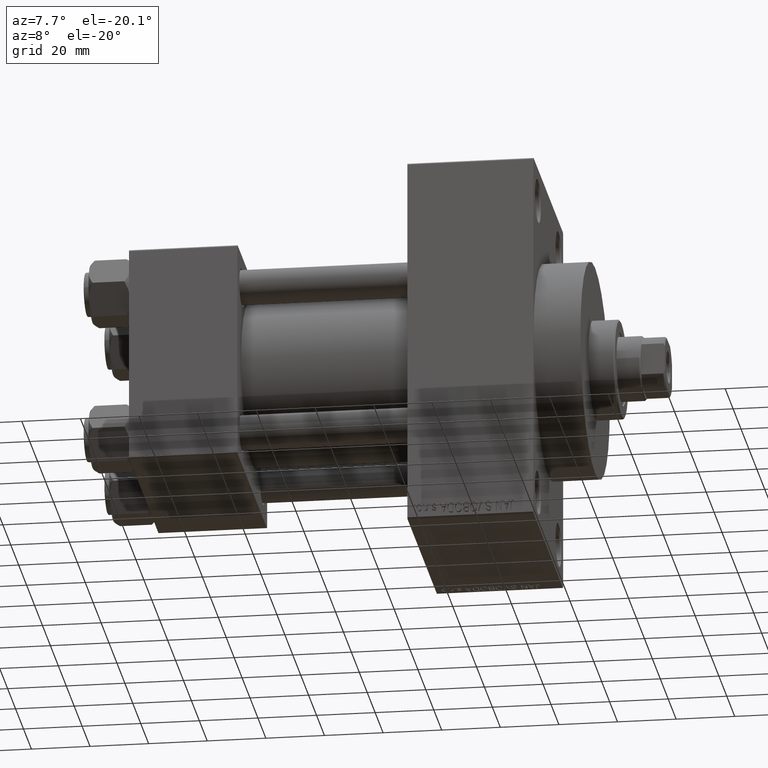
[diagram: clean part render]
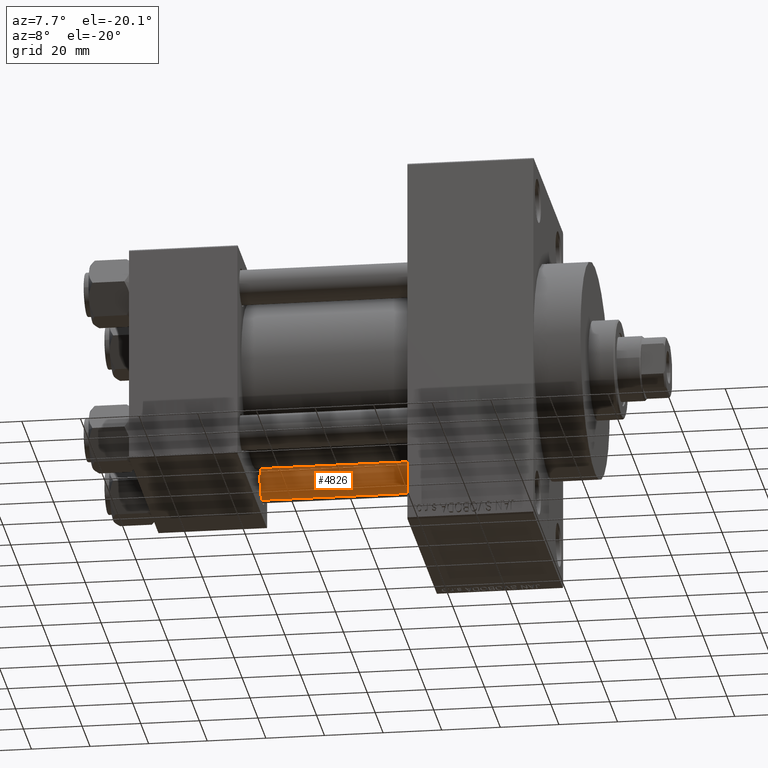
[diagram: same view with one face highlighted and labeled with its STEP entity id]
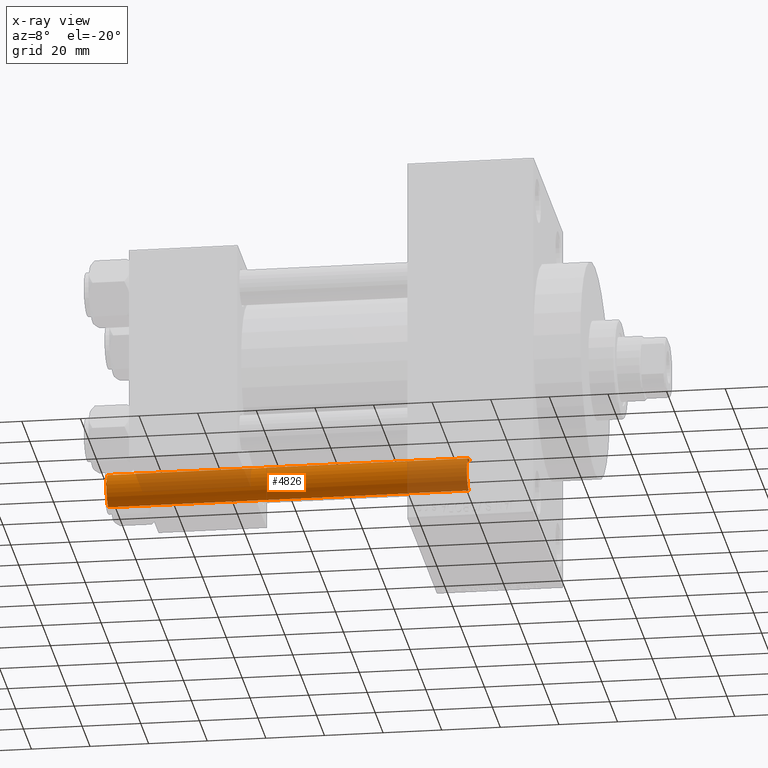
[diagram: x-ray of the same camera — body ghosted, the highlighted face saturated]
A machine part, auxiliary view. The second image highlights one B-rep face of the part: STEP entity #4826.
The next image is the same camera in x-ray: the body ghosted, the highlighted face saturated — about 35% of this face is hidden behind the body in this view.
In plain terms, the highlighted cylindrical surface (edge-blend (fillet) strip) has radius 6 mm, axis along (1, -0, 0).
Its self-contained STEP definition (entity closure, byte-faithful):
#192 = VERTEX_POINT ( 'NONE', #20935 ) ;
#2983 = DIRECTION ( 'NONE',  ( -0.000000000000000000, -0.000000000000000000, -1.000000000000000000 ) ) ;
#3151 = FACE_OUTER_BOUND ( 'NONE', #29922, .T. ) ;
#3765 = DIRECTION ( 'NONE',  ( 1.000000000000000000, 0.000000000000000000, 0.000000000000000000 ) ) ;
#4826 = ADVANCED_FACE ( 'NONE', ( #3151 ), #40784, .T. ) ;
#5966 = CARTESIAN_POINT ( 'NONE',  ( -6.000000000000000888, 0.000000000000000000, 0.4999999999999865663 ) ) ;
#6304 = CARTESIAN_POINT ( 'NONE',  ( 0.000000000000000000, 0.000000000000000000, 0.4999999999999865663 ) ) ;
#6713 = CARTESIAN_POINT ( 'NONE',  ( 6.000000000000000888, 7.347880794884120722E-16, 124.0000000000000000 ) ) ;
#9742 = LINE ( 'NONE', #36190, #28472 ) ;
#10442 = LINE ( 'NONE', #6713, #16875 ) ;
#10612 = DIRECTION ( 'NONE',  ( -1.000000000000000000, 0.000000000000000000, 0.000000000000000000 ) ) ;
#10985 = DIRECTION ( 'NONE',  ( 0.000000000000000000, 0.000000000000000000, -1.000000000000000000 ) ) ;
#13174 = ORIENTED_EDGE ( 'NONE', *, *, #15856, .T. ) ;
#13636 = DIRECTION ( 'NONE',  ( -0.000000000000000000, -0.000000000000000000, -1.000000000000000000 ) ) ;
#13781 = DIRECTION ( 'NONE',  ( 1.000000000000000000, 0.000000000000000000, 0.000000000000000000 ) ) ;
#15856 = EDGE_CURVE ( 'NONE', #192, #20485, #28445, .T. ) ;
#16840 = CARTESIAN_POINT ( 'NONE',  ( 6.000000000000000888, 7.347880794884120722E-16, 0.4999999999999865663 ) ) ;
#16875 = VECTOR ( 'NONE', #2983, 1000.000000000000000 ) ;
#17028 = AXIS2_PLACEMENT_3D ( 'NONE', #36805, #13636, #10612 ) ;
#17278 = DIRECTION ( 'NONE',  ( -0.000000000000000000, -0.000000000000000000, 1.000000000000000000 ) ) ;
#20485 = VERTEX_POINT ( 'NONE', #39814 ) ;
#20935 = CARTESIAN_POINT ( 'NONE',  ( 6.000000000000000888, 7.347880794884120722E-16, 123.5000000000000426 ) ) ;
#24595 = EDGE_CURVE ( 'NONE', #192, #37753, #10442, .T. ) ;
#24824 = ORIENTED_EDGE ( 'NONE', *, *, #24595, .F. ) ;
#25833 = ORIENTED_EDGE ( 'NONE', *, *, #38746, .T. ) ;
#28445 = CIRCLE ( 'NONE', #30845, 6.000000000000000888 ) ;
#28463 = DIRECTION ( 'NONE',  ( -0.000000000000000000, -0.000000000000000000, -1.000000000000000000 ) ) ;
#28472 = VECTOR ( 'NONE', #28463, 1000.000000000000000 ) ;
#29922 = EDGE_LOOP ( 'NONE', ( #24824, #13174, #46613, #25833 ) ) ;
#30785 = VERTEX_POINT ( 'NONE', #5966 ) ;
#30845 = AXIS2_PLACEMENT_3D ( 'NONE', #49122, #10985, #3765 ) ;
#35561 = CIRCLE ( 'NONE', #42710, 6.000000000000000888 ) ;
#36190 = CARTESIAN_POINT ( 'NONE',  ( -6.000000000000000888, 0.000000000000000000, 124.0000000000000000 ) ) ;
#36805 = CARTESIAN_POINT ( 'NONE',  ( 0.000000000000000000, 0.000000000000000000, 124.0000000000000000 ) ) ;
#37753 = VERTEX_POINT ( 'NONE', #16840 ) ;
#38746 = EDGE_CURVE ( 'NONE', #30785, #37753, #35561, .T. ) ;
#39814 = CARTESIAN_POINT ( 'NONE',  ( -6.000000000000000888, 0.000000000000000000, 123.5000000000000426 ) ) ;
#40784 = CYLINDRICAL_SURFACE ( 'NONE', #17028, 6.000000000000000888 ) ;
#40947 = EDGE_CURVE ( 'NONE', #20485, #30785, #9742, .T. ) ;
#42710 = AXIS2_PLACEMENT_3D ( 'NONE', #6304, #17278, #13781 ) ;
#46613 = ORIENTED_EDGE ( 'NONE', *, *, #40947, .T. ) ;
#49122 = CARTESIAN_POINT ( 'NONE',  ( 0.000000000000000000, 0.000000000000000000, 123.5000000000000426 ) ) ;